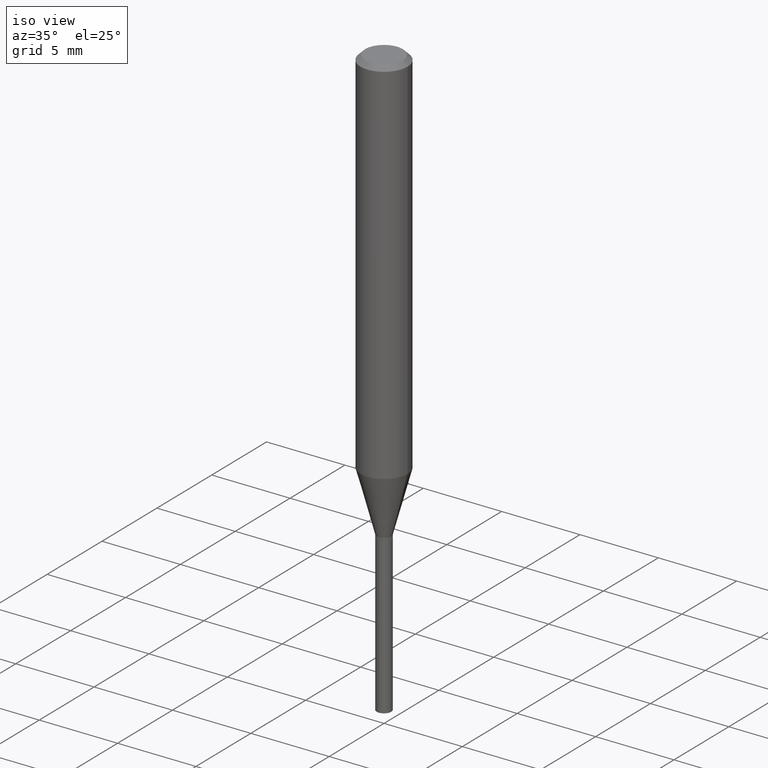
[diagram: clean part render]
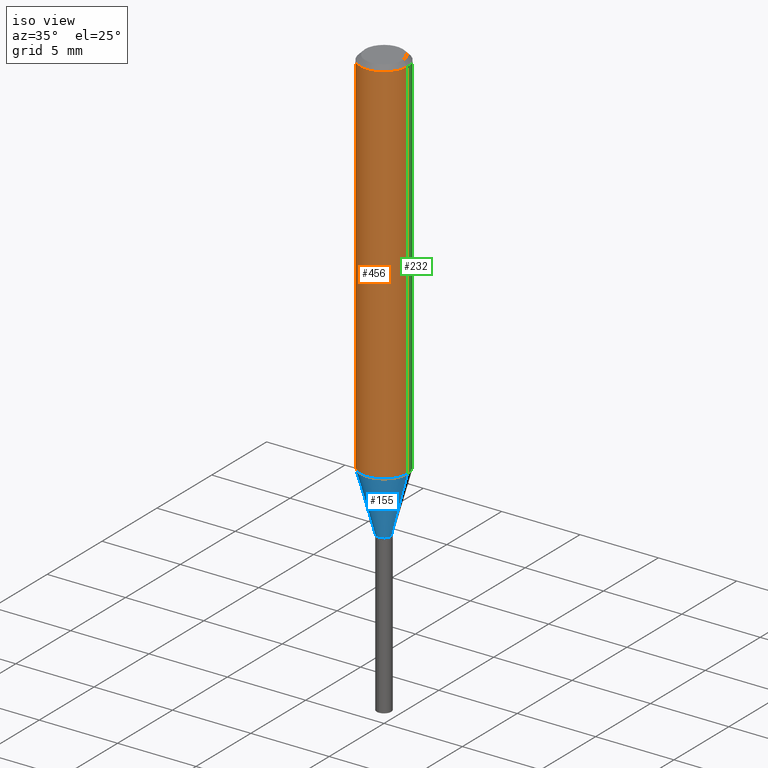
[diagram: same view with three faces highlighted in distinct colors, each labeled with its STEP entity id]
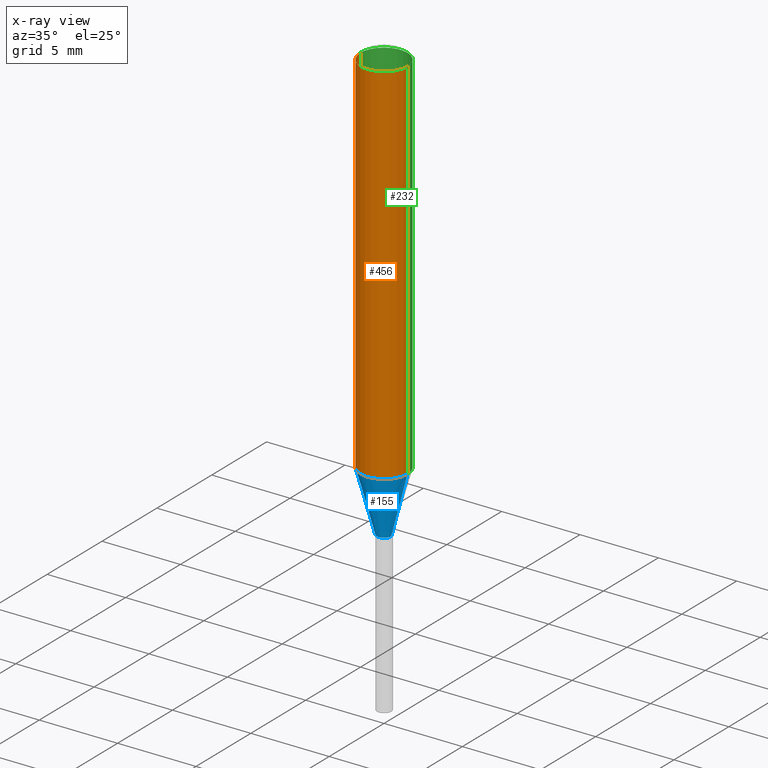
[diagram: x-ray of the same camera — body ghosted, the three highlighted faces saturated]
A machine part, iso view with three faces highlighted in distinct colors.
The next image is the same camera in x-ray (body ghosted, the three faces saturated) — at least one of them is partly hidden behind the body in this view.
Their STEP definitions:

[orange] entity #456 — the highlighted cylindrical surface (edge-blend (fillet) strip) has radius 1.4999 mm, axis along (-0, 0, 1).
#5 = DIRECTION ( 'NONE',  ( 1.000000000000000000, -6.982962677686266711E-15, 0.000000000000000000 ) ) ;
#17 = CIRCLE ( 'NONE', #126, 0.05904999999999999832 ) ;
#36 = CARTESIAN_POINT ( 'NONE',  ( 2.888098660104663328E-31, -4.123439461173779030E-17, -0.01181000000000006871 ) ) ;
#45 = DIRECTION ( 'NONE',  ( -2.445468806185136877E-29, 3.491481338843145188E-15, 1.000000000000000000 ) ) ;
#48 = EDGE_CURVE ( 'NONE', #164, #163, #17, .T. ) ;
#78 = CIRCLE ( 'NONE', #127, 0.05905000000000011628 ) ;
#84 = LINE ( 'NONE', #151, #108 ) ;
#98 = AXIS2_PLACEMENT_3D ( 'NONE', #120, #223, #185 ) ;
#108 = VECTOR ( 'NONE', #379, 39.37007874015748143 ) ;
#120 = CARTESIAN_POINT ( 'NONE',  ( 0.000000000000000000, 0.000000000000000000, 0.000000000000000000 ) ) ;
#126 = AXIS2_PLACEMENT_3D ( 'NONE', #36, #330, #5 ) ;
#127 = AXIS2_PLACEMENT_3D ( 'NONE', #317, #178, #481 ) ;
#145 = ORIENTED_EDGE ( 'NONE', *, *, #157, .T. ) ;
#151 = CARTESIAN_POINT ( 'NONE',  ( 0.05905000000000006077, -4.123439461173744764E-16, 2.879382386107503023E-30 ) ) ;
#157 = EDGE_CURVE ( 'NONE', #434, #163, #84, .T. ) ;
#158 = ORIENTED_EDGE ( 'NONE', *, *, #269, .F. ) ;
#159 = CARTESIAN_POINT ( 'NONE',  ( -0.05905000000000011628, -2.849402544195350882E-15, -0.9362725194300541842 ) ) ;
#163 = VERTEX_POINT ( 'NONE', #422 ) ;
#164 = VERTEX_POINT ( 'NONE', #344 ) ;
#178 = DIRECTION ( 'NONE',  ( -2.445468806185136597E-29, 3.491481338843145583E-15, 1.000000000000000000 ) ) ;
#185 = DIRECTION ( 'NONE',  ( 1.000000000000000000, -6.982962677686266711E-15, 4.876176775795935793E-29 ) ) ;
#219 = EDGE_CURVE ( 'NONE', #265, #434, #78, .T. ) ;
#223 = DIRECTION ( 'NONE',  ( -2.445468806185136597E-29, 3.491481338843145583E-15, 1.000000000000000000 ) ) ;
#265 = VERTEX_POINT ( 'NONE', #159 ) ;
#269 = EDGE_CURVE ( 'NONE', #265, #164, #302, .T. ) ;
#291 = ORIENTED_EDGE ( 'NONE', *, *, #219, .T. ) ;
#302 = LINE ( 'NONE', #459, #454 ) ;
#313 = CARTESIAN_POINT ( 'NONE',  ( 0.05905000000000011628, -3.681321975779065690E-15, -0.9362725194300541842 ) ) ;
#317 = CARTESIAN_POINT ( 'NONE',  ( 2.289625240354564916E-29, -3.268978029661690375E-15, -0.9362725194300541842 ) ) ;
#323 = CYLINDRICAL_SURFACE ( 'NONE', #98, 0.05905000000000006077 ) ;
#330 = DIRECTION ( 'NONE',  ( -2.445468806185136597E-29, 3.491481338843145583E-15, 1.000000000000000000 ) ) ;
#344 = CARTESIAN_POINT ( 'NONE',  ( -0.05904999999999999832, -1.235530726670373770E-15, -0.01181000000000006871 ) ) ;
#374 = EDGE_LOOP ( 'NONE', ( #158, #291, #145, #405 ) ) ;
#379 = DIRECTION ( 'NONE',  ( -2.445468806185136877E-29, 3.491481338843145188E-15, 1.000000000000000000 ) ) ;
#405 = ORIENTED_EDGE ( 'NONE', *, *, #48, .F. ) ;
#422 = CARTESIAN_POINT ( 'NONE',  ( 0.05904999999999999832, -4.535783407291118600E-16, -0.01181000000000006871 ) ) ;
#434 = VERTEX_POINT ( 'NONE', #313 ) ;
#448 = FACE_OUTER_BOUND ( 'NONE', #374, .T. ) ;
#454 = VECTOR ( 'NONE', #45, 39.37007874015748143 ) ;
#456 = ADVANCED_FACE ( 'NONE', ( #448 ), #323, .T. ) ;
#459 = CARTESIAN_POINT ( 'NONE',  ( -0.05905000000000006077, 4.195754854663395916E-16, -2.904631170795524694E-30 ) ) ;
#481 = DIRECTION ( 'NONE',  ( 1.000000000000000000, -6.982962677686266711E-15, 0.000000000000000000 ) ) ;

[blue] entity #155 — the highlighted conical surface has half-angle 15 deg.
#9 = CONICAL_SURFACE ( 'NONE', #321, 0.01810000000000000150, 0.2617993877991498519 ) ;
#15 = VERTEX_POINT ( 'NONE', #80 ) ;
#18 = VECTOR ( 'NONE', #138, 39.37007874015748854 ) ;
#23 = CARTESIAN_POINT ( 'NONE',  ( -0.01810000000000000150, -3.673964090961491577E-15, -1.089099999999999957 ) ) ;
#26 = DIRECTION ( 'NONE',  ( -2.445468806185136597E-29, 3.491481338843145583E-15, 1.000000000000000000 ) ) ;
#27 = CARTESIAN_POINT ( 'NONE',  ( 0.01810000000000000150, -3.928963950600190549E-15, -1.089099999999999957 ) ) ;
#39 = EDGE_LOOP ( 'NONE', ( #423, #490, #208, #128 ) ) ;
#55 = DIRECTION ( 'NONE',  ( -2.445468806185136597E-29, 3.491481338843145583E-15, 1.000000000000000000 ) ) ;
#66 = VERTEX_POINT ( 'NONE', #322 ) ;
#78 = CIRCLE ( 'NONE', #127, 0.05905000000000011628 ) ;
#80 = CARTESIAN_POINT ( 'NONE',  ( 0.01810000000000000150, -3.928963950600190549E-15, -1.089099999999999957 ) ) ;
#87 = CIRCLE ( 'NONE', #435, 0.01810000000000000150 ) ;
#127 = AXIS2_PLACEMENT_3D ( 'NONE', #317, #178, #481 ) ;
#128 = ORIENTED_EDGE ( 'NONE', *, *, #219, .F. ) ;
#138 = DIRECTION ( 'NONE',  ( -0.2588190451025211281, 5.211531920934547886E-15, 0.9659258262890679791 ) ) ;
#139 = EDGE_CURVE ( 'NONE', #66, #265, #144, .T. ) ;
#141 = VECTOR ( 'NONE', #357, 39.37007874015748854 ) ;
#144 = LINE ( 'NONE', #23, #18 ) ;
#155 = ADVANCED_FACE ( 'NONE', ( #279 ), #9, .T. ) ;
#159 = CARTESIAN_POINT ( 'NONE',  ( -0.05905000000000011628, -2.849402544195350882E-15, -0.9362725194300541842 ) ) ;
#178 = DIRECTION ( 'NONE',  ( -2.445468806185136597E-29, 3.491481338843145583E-15, 1.000000000000000000 ) ) ;
#206 = EDGE_CURVE ( 'NONE', #15, #434, #278, .T. ) ;
#208 = ORIENTED_EDGE ( 'NONE', *, *, #206, .T. ) ;
#210 = DIRECTION ( 'NONE',  ( 1.000000000000000000, -6.982962677686262766E-15, 0.000000000000000000 ) ) ;
#219 = EDGE_CURVE ( 'NONE', #265, #434, #78, .T. ) ;
#265 = VERTEX_POINT ( 'NONE', #159 ) ;
#275 = DIRECTION ( 'NONE',  ( 1.000000000000000000, -6.982962677686262766E-15, 0.000000000000000000 ) ) ;
#278 = LINE ( 'NONE', #27, #141 ) ;
#279 = FACE_OUTER_BOUND ( 'NONE', #39, .T. ) ;
#313 = CARTESIAN_POINT ( 'NONE',  ( 0.05905000000000011628, -3.681321975779065690E-15, -0.9362725194300541842 ) ) ;
#317 = CARTESIAN_POINT ( 'NONE',  ( 2.289625240354564916E-29, -3.268978029661690375E-15, -0.9362725194300541842 ) ) ;
#321 = AXIS2_PLACEMENT_3D ( 'NONE', #350, #55, #210 ) ;
#322 = CARTESIAN_POINT ( 'NONE',  ( -0.01810000000000000150, -3.682518220241656550E-15, -1.089099999999999957 ) ) ;
#350 = CARTESIAN_POINT ( 'NONE',  ( 2.663360076816232005E-29, -3.802572326134069746E-15, -1.089099999999999957 ) ) ;
#357 = DIRECTION ( 'NONE',  ( 0.2588190451025211281, 1.565188264969622954E-15, 0.9659258262890679791 ) ) ;
#389 = EDGE_CURVE ( 'NONE', #66, #15, #87, .T. ) ;
#392 = CARTESIAN_POINT ( 'NONE',  ( 2.663360076816232005E-29, -3.802572326134069746E-15, -1.089099999999999957 ) ) ;
#423 = ORIENTED_EDGE ( 'NONE', *, *, #139, .F. ) ;
#434 = VERTEX_POINT ( 'NONE', #313 ) ;
#435 = AXIS2_PLACEMENT_3D ( 'NONE', #392, #26, #275 ) ;
#481 = DIRECTION ( 'NONE',  ( 1.000000000000000000, -6.982962677686266711E-15, 0.000000000000000000 ) ) ;
#490 = ORIENTED_EDGE ( 'NONE', *, *, #389, .T. ) ;

[green] entity #232 — the highlighted cylindrical surface (edge-blend (fillet) strip) has radius 1.4999 mm, axis along (-0, 0, 1).
#25 = AXIS2_PLACEMENT_3D ( 'NONE', #408, #451, #259 ) ;
#45 = DIRECTION ( 'NONE',  ( -2.445468806185136877E-29, 3.491481338843145188E-15, 1.000000000000000000 ) ) ;
#59 = CARTESIAN_POINT ( 'NONE',  ( 0.000000000000000000, 0.000000000000000000, 0.000000000000000000 ) ) ;
#63 = EDGE_CURVE ( 'NONE', #163, #164, #156, .T. ) ;
#84 = LINE ( 'NONE', #151, #108 ) ;
#102 = DIRECTION ( 'NONE',  ( -2.445468806185136597E-29, 3.491481338843145583E-15, 1.000000000000000000 ) ) ;
#108 = VECTOR ( 'NONE', #379, 39.37007874015748143 ) ;
#121 = EDGE_CURVE ( 'NONE', #434, #265, #411, .T. ) ;
#132 = EDGE_LOOP ( 'NONE', ( #276, #457, #181, #438 ) ) ;
#151 = CARTESIAN_POINT ( 'NONE',  ( 0.05905000000000006077, -4.123439461173744764E-16, 2.879382386107503023E-30 ) ) ;
#156 = CIRCLE ( 'NONE', #25, 0.05904999999999999832 ) ;
#157 = EDGE_CURVE ( 'NONE', #434, #163, #84, .T. ) ;
#159 = CARTESIAN_POINT ( 'NONE',  ( -0.05905000000000011628, -2.849402544195350882E-15, -0.9362725194300541842 ) ) ;
#163 = VERTEX_POINT ( 'NONE', #422 ) ;
#164 = VERTEX_POINT ( 'NONE', #344 ) ;
#170 = DIRECTION ( 'NONE',  ( 1.000000000000000000, -6.982962677686266711E-15, 0.000000000000000000 ) ) ;
#181 = ORIENTED_EDGE ( 'NONE', *, *, #63, .F. ) ;
#184 = AXIS2_PLACEMENT_3D ( 'NONE', #59, #102, #382 ) ;
#209 = AXIS2_PLACEMENT_3D ( 'NONE', #482, #470, #170 ) ;
#232 = ADVANCED_FACE ( 'NONE', ( #271 ), #238, .T. ) ;
#238 = CYLINDRICAL_SURFACE ( 'NONE', #184, 0.05905000000000006077 ) ;
#259 = DIRECTION ( 'NONE',  ( 1.000000000000000000, -6.982962677686266711E-15, 0.000000000000000000 ) ) ;
#265 = VERTEX_POINT ( 'NONE', #159 ) ;
#269 = EDGE_CURVE ( 'NONE', #265, #164, #302, .T. ) ;
#271 = FACE_OUTER_BOUND ( 'NONE', #132, .T. ) ;
#276 = ORIENTED_EDGE ( 'NONE', *, *, #121, .T. ) ;
#302 = LINE ( 'NONE', #459, #454 ) ;
#313 = CARTESIAN_POINT ( 'NONE',  ( 0.05905000000000011628, -3.681321975779065690E-15, -0.9362725194300541842 ) ) ;
#344 = CARTESIAN_POINT ( 'NONE',  ( -0.05904999999999999832, -1.235530726670373770E-15, -0.01181000000000006871 ) ) ;
#379 = DIRECTION ( 'NONE',  ( -2.445468806185136877E-29, 3.491481338843145188E-15, 1.000000000000000000 ) ) ;
#382 = DIRECTION ( 'NONE',  ( 1.000000000000000000, -6.982962677686266711E-15, 4.876176775795935793E-29 ) ) ;
#408 = CARTESIAN_POINT ( 'NONE',  ( 2.888098660104663328E-31, -4.123439461173779030E-17, -0.01181000000000006871 ) ) ;
#411 = CIRCLE ( 'NONE', #209, 0.05905000000000011628 ) ;
#422 = CARTESIAN_POINT ( 'NONE',  ( 0.05904999999999999832, -4.535783407291118600E-16, -0.01181000000000006871 ) ) ;
#434 = VERTEX_POINT ( 'NONE', #313 ) ;
#438 = ORIENTED_EDGE ( 'NONE', *, *, #157, .F. ) ;
#451 = DIRECTION ( 'NONE',  ( -2.445468806185136597E-29, 3.491481338843145583E-15, 1.000000000000000000 ) ) ;
#454 = VECTOR ( 'NONE', #45, 39.37007874015748143 ) ;
#457 = ORIENTED_EDGE ( 'NONE', *, *, #269, .T. ) ;
#459 = CARTESIAN_POINT ( 'NONE',  ( -0.05905000000000006077, 4.195754854663395916E-16, -2.904631170795524694E-30 ) ) ;
#470 = DIRECTION ( 'NONE',  ( -2.445468806185136597E-29, 3.491481338843145583E-15, 1.000000000000000000 ) ) ;
#482 = CARTESIAN_POINT ( 'NONE',  ( 2.289625240354564916E-29, -3.268978029661690375E-15, -0.9362725194300541842 ) ) ;